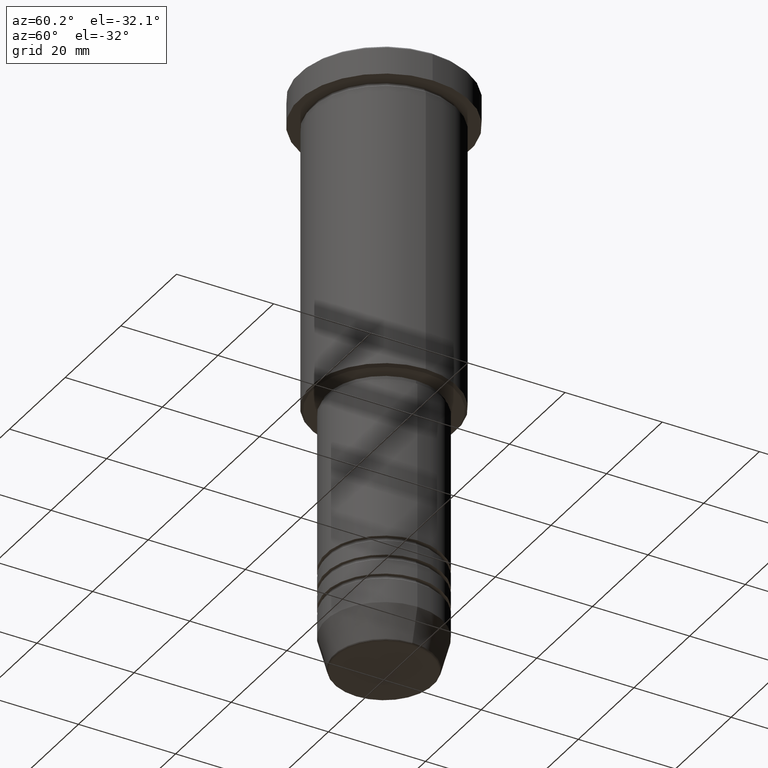
[diagram: clean part render]
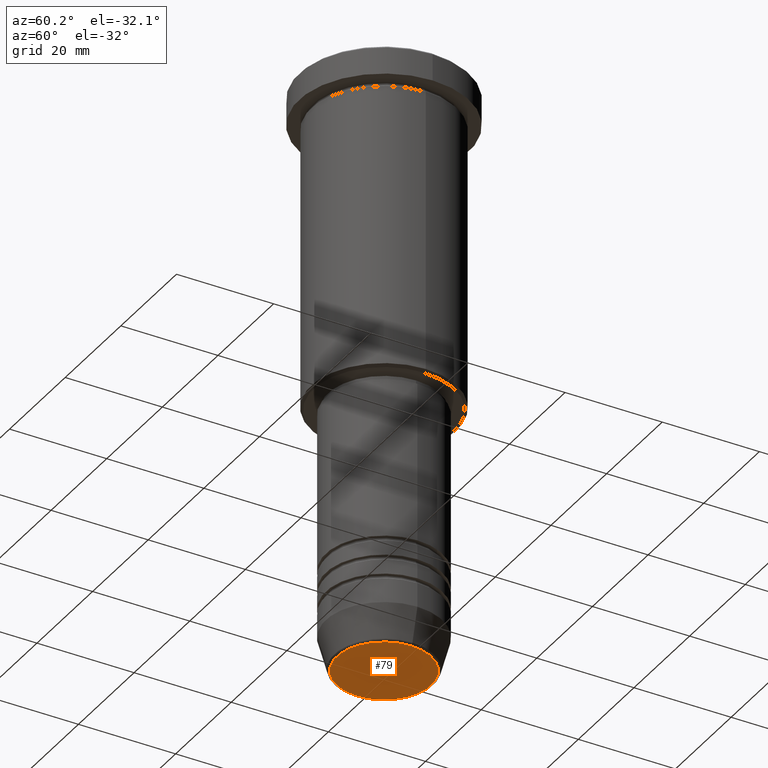
[diagram: same view with one face highlighted and labeled with its STEP entity id]
A machine part, auxiliary view. The second image highlights one B-rep face of the part: STEP entity #79.
In plain terms, the highlighted planar face has unit normal (0, -0, 1).
Its self-contained STEP definition (entity closure, byte-faithful):
#79 = ADVANCED_FACE ( 'NONE', ( #749 ), #293, .F. ) ;
#123 = DIRECTION ( 'NONE',  ( 0.000000000000000000, -0.000000000000000000, 1.000000000000000000 ) ) ;
#172 = EDGE_CURVE ( 'NONE', #561, #898, #884, .T. ) ;
#293 = PLANE ( 'NONE',  #431 ) ;
#307 = CARTESIAN_POINT ( 'NONE',  ( 0.000000000000000000, 0.000000000000000000, -121.0000000000000000 ) ) ;
#336 = EDGE_LOOP ( 'NONE', ( #472, #1068 ) ) ;
#392 = AXIS2_PLACEMENT_3D ( 'NONE', #1044, #502, #861 ) ;
#431 = AXIS2_PLACEMENT_3D ( 'NONE', #1025, #123, #790 ) ;
#472 = ORIENTED_EDGE ( 'NONE', *, *, #172, .T. ) ;
#502 = DIRECTION ( 'NONE',  ( 0.000000000000000000, 0.000000000000000000, -1.000000000000000000 ) ) ;
#559 = CARTESIAN_POINT ( 'NONE',  ( -9.740692158992658278, 1.222463696683474604E-15, -121.0000000000000000 ) ) ;
#561 = VERTEX_POINT ( 'NONE', #1067 ) ;
#571 = AXIS2_PLACEMENT_3D ( 'NONE', #307, #1053, #691 ) ;
#691 = DIRECTION ( 'NONE',  ( 1.000000000000000000, 0.000000000000000000, 0.000000000000000000 ) ) ;
#749 = FACE_OUTER_BOUND ( 'NONE', #336, .T. ) ;
#790 = DIRECTION ( 'NONE',  ( 1.000000000000000000, 0.000000000000000000, 0.000000000000000000 ) ) ;
#861 = DIRECTION ( 'NONE',  ( 1.000000000000000000, 0.000000000000000000, 0.000000000000000000 ) ) ;
#884 = CIRCLE ( 'NONE', #392, 9.740692158992658278 ) ;
#898 = VERTEX_POINT ( 'NONE', #559 ) ;
#1025 = CARTESIAN_POINT ( 'NONE',  ( 0.000000000000000000, 0.000000000000000000, -121.0000000000000000 ) ) ;
#1044 = CARTESIAN_POINT ( 'NONE',  ( 0.000000000000000000, 0.000000000000000000, -121.0000000000000000 ) ) ;
#1052 = EDGE_CURVE ( 'NONE', #898, #561, #1063, .T. ) ;
#1053 = DIRECTION ( 'NONE',  ( 0.000000000000000000, 0.000000000000000000, -1.000000000000000000 ) ) ;
#1063 = CIRCLE ( 'NONE', #571, 9.740692158992658278 ) ;
#1067 = CARTESIAN_POINT ( 'NONE',  ( 9.740692158992658278, 0.000000000000000000, -121.0000000000000000 ) ) ;
#1068 = ORIENTED_EDGE ( 'NONE', *, *, #1052, .T. ) ;